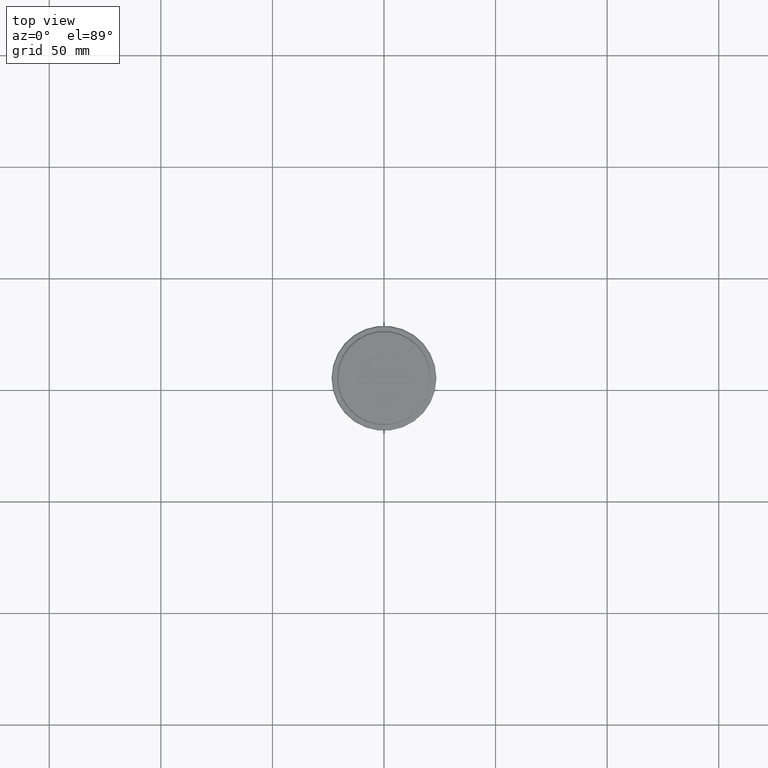
[diagram: clean part render]
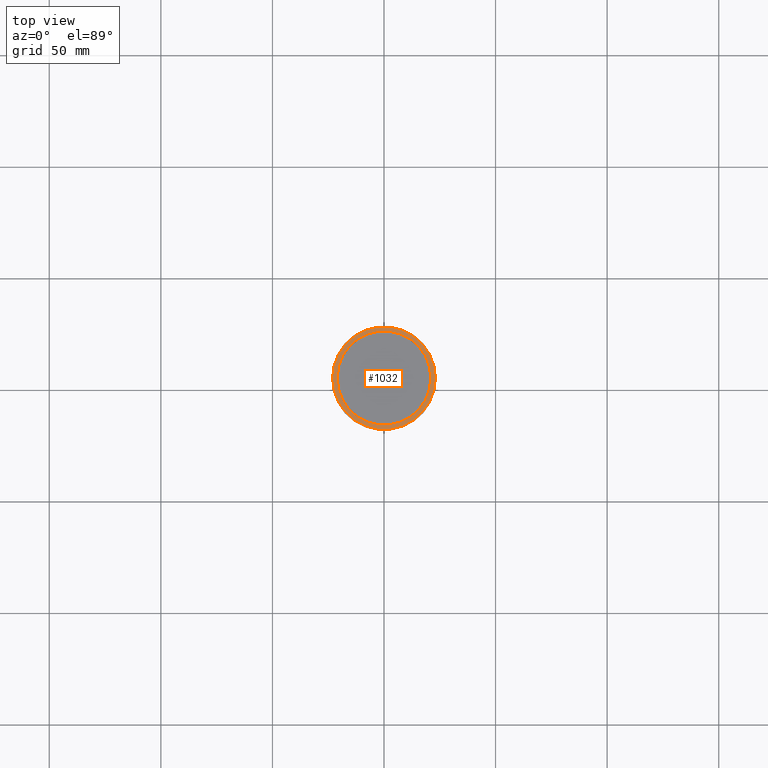
[diagram: same view with one face highlighted and labeled with its STEP entity id]
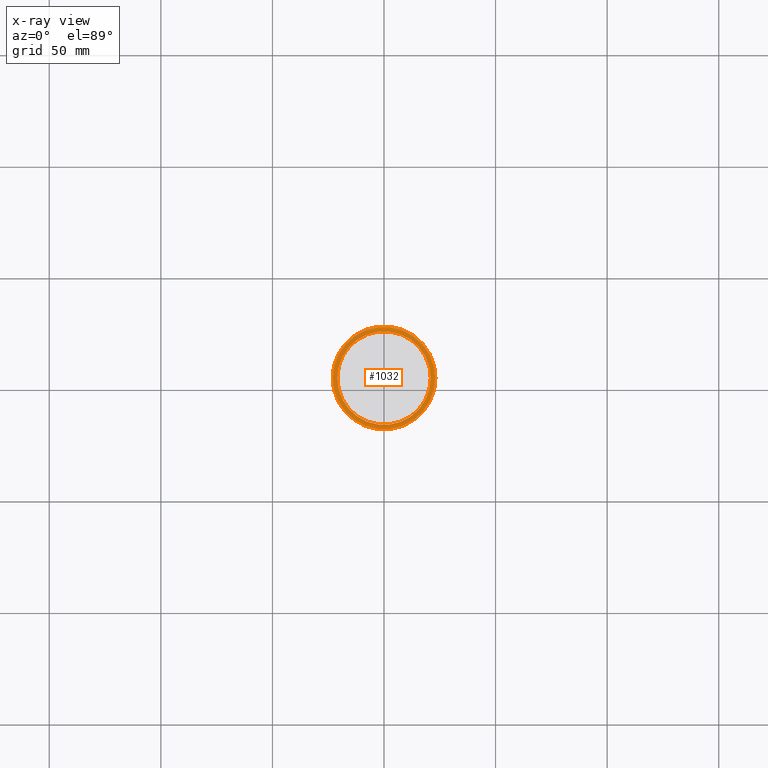
[diagram: x-ray of the same camera — body ghosted, the highlighted face saturated]
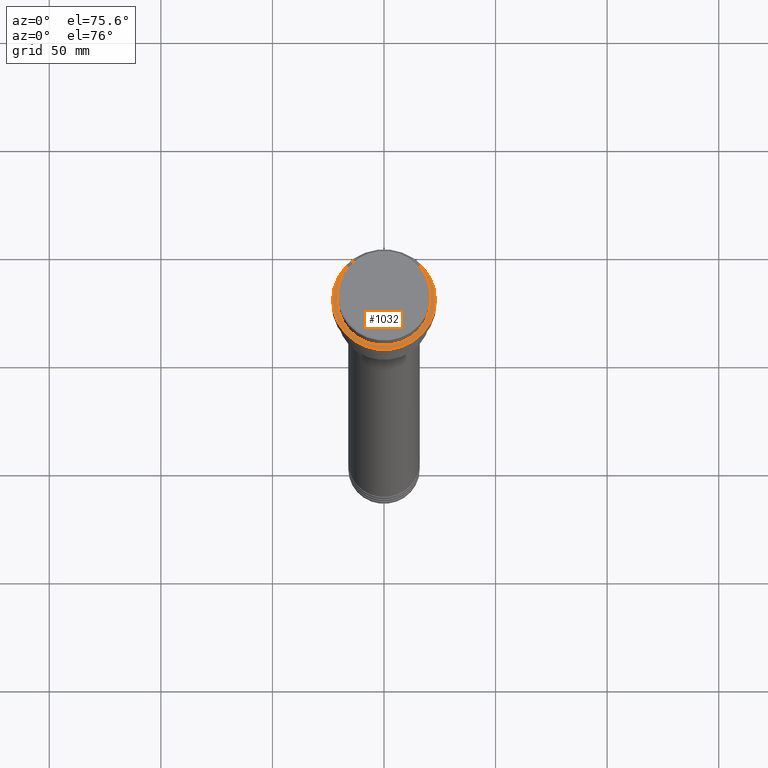
[diagram: same view with one face highlighted and labeled with its STEP entity id]
A machine part, top view. The second image highlights one B-rep face of the part: STEP entity #1032.
The next image is the same camera in x-ray: the body ghosted, the highlighted face saturated — about 0% of this face is hidden behind the body in this view.
A second angle (auxiliary view) of the same face is appended — the face is thin or edge-on in the first view.
In plain terms, the highlighted planar face has unit normal (0, -0, 1).
Its self-contained STEP definition (entity closure, byte-faithful):
#75 = VERTEX_POINT ( 'NONE', #1053 ) ;
#80 = VERTEX_POINT ( 'NONE', #99 ) ;
#94 = DIRECTION ( 'NONE',  ( -0.000000000000000000, -0.000000000000000000, 1.000000000000000000 ) ) ;
#99 = CARTESIAN_POINT ( 'NONE',  ( -22.99999999999996803, 0.000000000000000000, -9.000000000000000000 ) ) ;
#115 = CIRCLE ( 'NONE', #405, 22.99999999999996803 ) ;
#129 = DIRECTION ( 'NONE',  ( -0.000000000000000000, -0.000000000000000000, 1.000000000000000000 ) ) ;
#158 = AXIS2_PLACEMENT_3D ( 'NONE', #1183, #94, #1259 ) ;
#164 = AXIS2_PLACEMENT_3D ( 'NONE', #1319, #324, #1403 ) ;
#188 = CARTESIAN_POINT ( 'NONE',  ( 20.99999999999999289, 0.000000000000000000, -9.000000000000000000 ) ) ;
#214 = EDGE_CURVE ( 'NONE', #75, #80, #115, .T. ) ;
#324 = DIRECTION ( 'NONE',  ( 0.000000000000000000, -0.000000000000000000, 1.000000000000000000 ) ) ;
#373 = DIRECTION ( 'NONE',  ( 1.000000000000000000, 0.000000000000000000, 0.000000000000000000 ) ) ;
#405 = AXIS2_PLACEMENT_3D ( 'NONE', #546, #129, #552 ) ;
#419 = FACE_OUTER_BOUND ( 'NONE', #724, .T. ) ;
#429 = CIRCLE ( 'NONE', #1228, 20.99999999999999289 ) ;
#430 = EDGE_CURVE ( 'NONE', #1005, #487, #471, .T. ) ;
#471 = CIRCLE ( 'NONE', #1044, 20.99999999999999289 ) ;
#487 = VERTEX_POINT ( 'NONE', #526 ) ;
#526 = CARTESIAN_POINT ( 'NONE',  ( -20.99999999999999289, 2.571758278209440872E-15, -9.000000000000000000 ) ) ;
#546 = CARTESIAN_POINT ( 'NONE',  ( 0.000000000000000000, 0.000000000000000000, -9.000000000000000000 ) ) ;
#552 = DIRECTION ( 'NONE',  ( 1.000000000000000000, 0.000000000000000000, 0.000000000000000000 ) ) ;
#577 = ORIENTED_EDGE ( 'NONE', *, *, #937, .T. ) ;
#591 = DIRECTION ( 'NONE',  ( 0.000000000000000000, 0.000000000000000000, -1.000000000000000000 ) ) ;
#684 = CARTESIAN_POINT ( 'NONE',  ( 0.000000000000000000, 0.000000000000000000, -9.000000000000000000 ) ) ;
#724 = EDGE_LOOP ( 'NONE', ( #577, #1375 ) ) ;
#785 = EDGE_CURVE ( 'NONE', #487, #1005, #429, .T. ) ;
#852 = FACE_BOUND ( 'NONE', #935, .T. ) ;
#916 = ORIENTED_EDGE ( 'NONE', *, *, #785, .T. ) ;
#919 = ORIENTED_EDGE ( 'NONE', *, *, #430, .T. ) ;
#922 = CARTESIAN_POINT ( 'NONE',  ( 0.000000000000000000, 0.000000000000000000, -9.000000000000000000 ) ) ;
#935 = EDGE_LOOP ( 'NONE', ( #919, #916 ) ) ;
#937 = EDGE_CURVE ( 'NONE', #80, #75, #995, .T. ) ;
#995 = CIRCLE ( 'NONE', #158, 22.99999999999996803 ) ;
#1005 = VERTEX_POINT ( 'NONE', #188 ) ;
#1032 = ADVANCED_FACE ( 'NONE', ( #419, #852 ), #1286, .T. ) ;
#1036 = DIRECTION ( 'NONE',  ( 1.000000000000000000, 0.000000000000000000, 0.000000000000000000 ) ) ;
#1044 = AXIS2_PLACEMENT_3D ( 'NONE', #922, #591, #1036 ) ;
#1053 = CARTESIAN_POINT ( 'NONE',  ( 22.99999999999996803, 2.847303808017594561E-15, -9.000000000000000000 ) ) ;
#1149 = DIRECTION ( 'NONE',  ( 0.000000000000000000, 0.000000000000000000, -1.000000000000000000 ) ) ;
#1183 = CARTESIAN_POINT ( 'NONE',  ( 0.000000000000000000, 0.000000000000000000, -9.000000000000000000 ) ) ;
#1228 = AXIS2_PLACEMENT_3D ( 'NONE', #684, #1149, #373 ) ;
#1259 = DIRECTION ( 'NONE',  ( 1.000000000000000000, 0.000000000000000000, 0.000000000000000000 ) ) ;
#1286 = PLANE ( 'NONE',  #164 ) ;
#1319 = CARTESIAN_POINT ( 'NONE',  ( 0.000000000000000000, 20.49999999999999645, -9.000000000000000000 ) ) ;
#1375 = ORIENTED_EDGE ( 'NONE', *, *, #214, .T. ) ;
#1403 = DIRECTION ( 'NONE',  ( 1.000000000000000000, 0.000000000000000000, 0.000000000000000000 ) ) ;